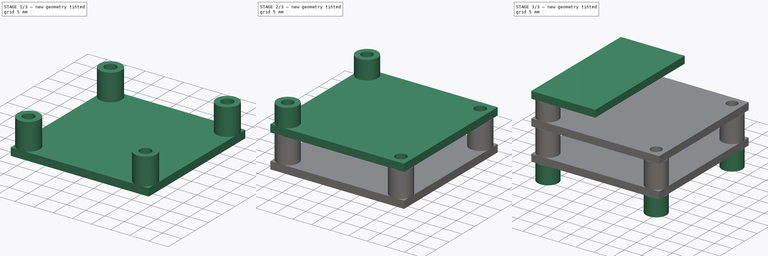
[diagram: build sequence overview — one tinted view per stage of 3, left to right]
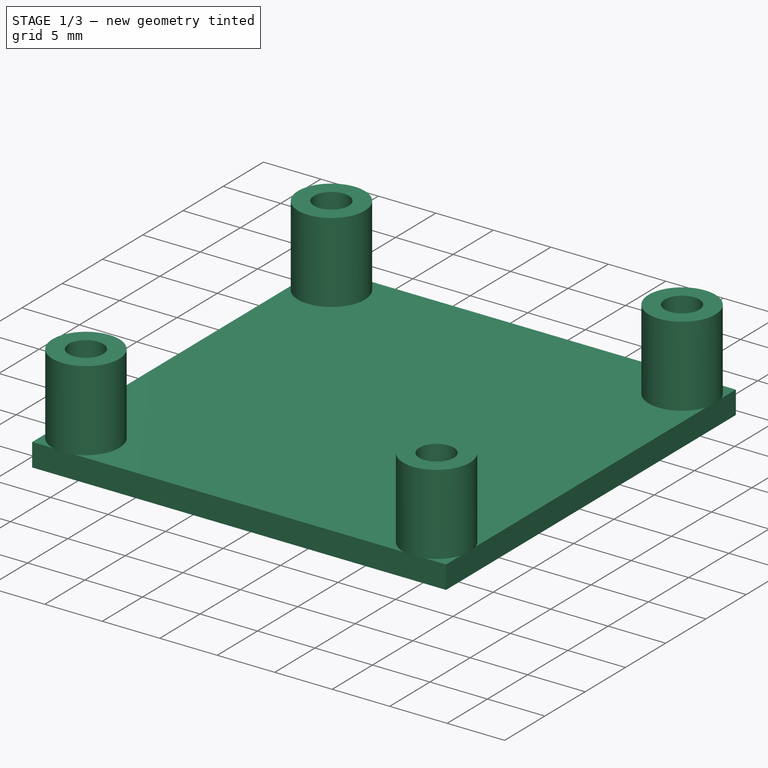
[diagram: stage 1 of 3 — iso view after this stage's code; geometry added in this stage tinted green]
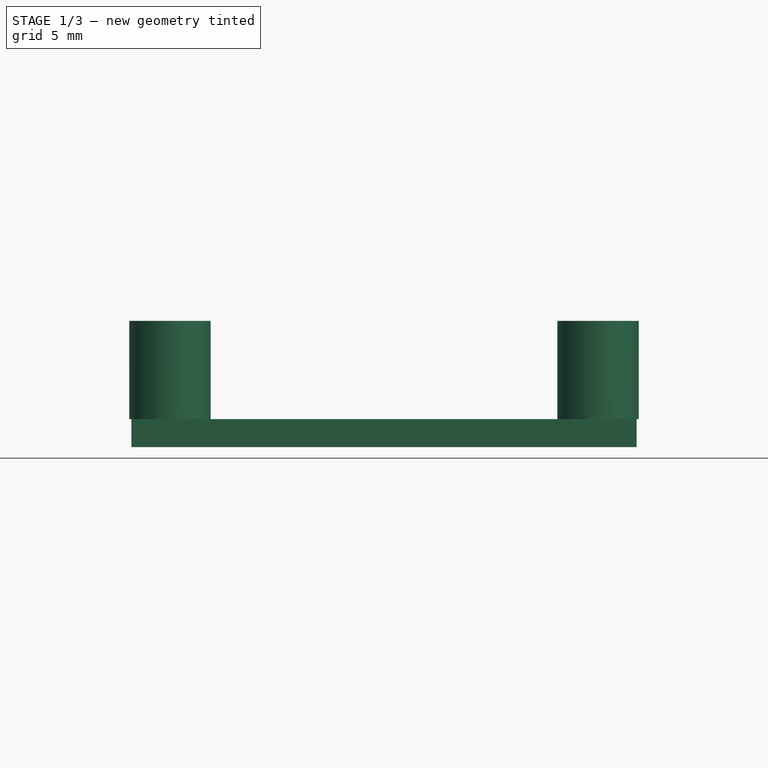
[diagram: stage 1 of 3 — front view after this stage's code; geometry added in this stage tinted green]
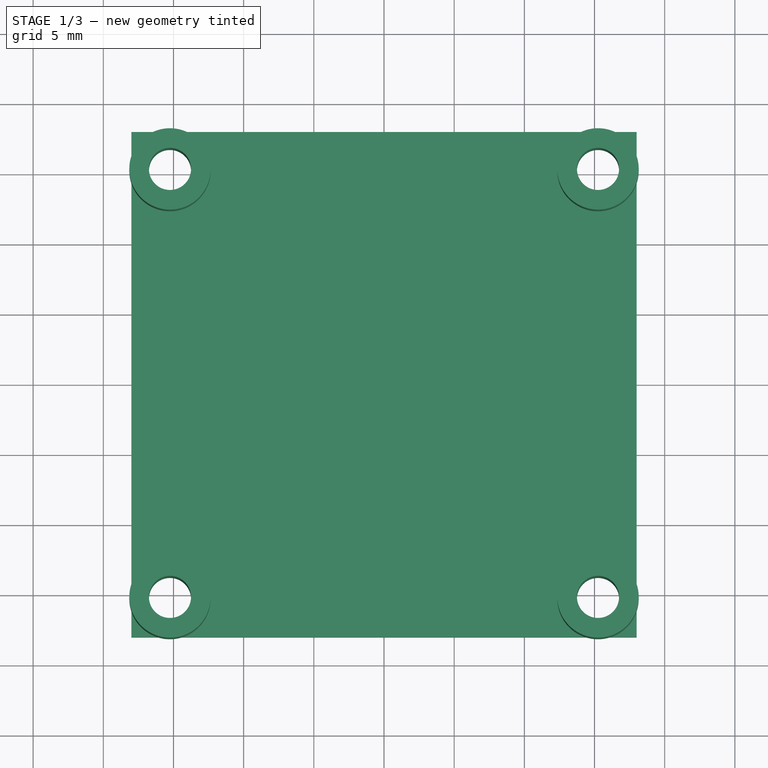
[diagram: stage 1 of 3 — top view after this stage's code; geometry added in this stage tinted green]
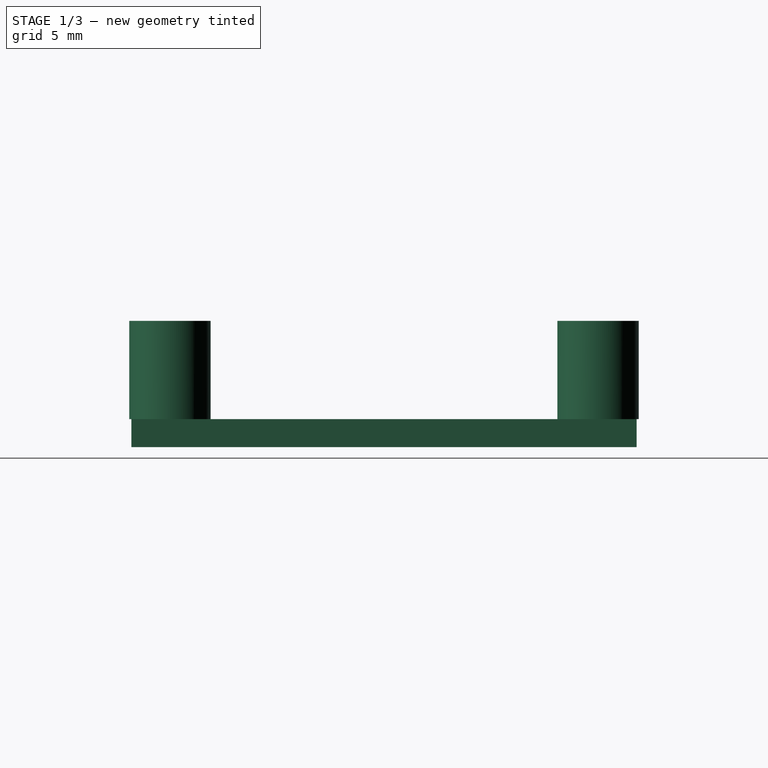
[diagram: stage 1 of 3 — right view after this stage's code; geometry added in this stage tinted green]
FCSTD DOCUMENT  (FreeCAD 0.18R15711 (Git))
Label: fc_stack
License: All rights reserved
LicenseURL: http://en.wikipedia.org/wiki/All_rights_reserved
objects: Sketcher::SketchObject×6, PartDesign::Pad×6, Spreadsheet::Sheet×1, PartDesign::Body×1
note: 19 computed .brp shape members not serialized (recipe doc carries the construction recipe); baked Part::Feature solids carry a one-line shape summary decoded from their .brp

FEATURE [Sketcher::SketchObject] Sketch
  MapMode = 5
  Support = -> [XY_Plane]
  expr: Constraints[27] = Spreadsheet.hole_pattern_h
  expr: Constraints[26] = Spreadsheet.hole_pattern_w
  expr: Constraints[25] = Spreadsheet.esc_h
  expr: Constraints[24] = Spreadsheet.esc_w
  expr: Constraints[23] = Spreadsheet.hole_dia
  sketch-geometry (12):
    g0: LineSegment StartX=-18 StartY=18 StartZ=0 EndX=18 EndY=18 EndZ=0
    g1: LineSegment StartX=18 StartY=18 StartZ=0 EndX=18 EndY=-18 EndZ=0
    g2: LineSegment StartX=18 StartY=-18 StartZ=0 EndX=-18 EndY=-18 EndZ=0
    g3: LineSegment StartX=-18 StartY=-18 StartZ=0 EndX=-18 EndY=18 EndZ=0
    g4: LineSegment [constr] StartX=15.25 StartY=15.25 StartZ=0 EndX=-15.25 EndY=15.25 EndZ=0
    g5: LineSegment [constr] StartX=-15.25 StartY=15.25 StartZ=0 EndX=-15.25 EndY=-15.25 EndZ=0
    g6: LineSegment [constr] StartX=-15.25 StartY=-15.25 StartZ=0 EndX=15.25 EndY=-15.25 EndZ=0
    g7: LineSegment [constr] StartX=15.25 StartY=-15.25 StartZ=0 EndX=15.25 EndY=15.25 EndZ=0
    g8: Circle CenterX=-15.25 CenterY=-15.25 CenterZ=0 NormalX=0 NormalY=0 NormalZ=1 AngleXU=0 Radius=1.5
    g9: Circle CenterX=15.25 CenterY=-15.25 CenterZ=0 NormalX=0 NormalY=0 NormalZ=1 AngleXU=0 Radius=1.5
    g10: Circle CenterX=-15.25 CenterY=15.25 CenterZ=0 NormalX=0 NormalY=0 NormalZ=1 AngleXU=0 Radius=1.5
    g11: Circle CenterX=15.25 CenterY=15.25 CenterZ=0 NormalX=0 NormalY=0 NormalZ=1 AngleXU=0 Radius=1.5
  constraints (28):
    c: Coincident(g0,g1)
    c: Coincident(g1,g2)
    c: Coincident(g2,g3)
    c: Coincident(g3,g0)
    c: Horizontal(g2)
    c: Vertical(g1)
    c: Coincident(g4,g5)
    c: Coincident(g5,g6)
    c: Coincident(g6,g7)
    c: Coincident(g7,g4)
    c: Horizontal(g6)
    c: Vertical(g7)
    c: Equal(g11,g10)
    c: Equal(g10,g9)
    c: Equal(g9,g8)
    c: Coincident(g11,g4)
    c: Coincident(g10,g4)
    c: Symmetric(g10,g11,g-2)
    c: Symmetric(g10,g5,g-1)
    c: Coincident(g8,g5)
    c: Coincident(g9,g6)
    c: Symmetric(g0,g2,g-1)
    c: Symmetric(g0,g0,g-2)
    c: Radius(g10) = 1.5
    c: DistanceX(g0,g0) = 36
    c: DistanceY(g3,g3) = 36
    c: DistanceX(g4,g4) = 30.5
    c: DistanceY(g5,g5) = 30.5
FEATURE [Spreadsheet::Sheet] Spreadsheet
  cells = A1=hole_dia; B1(hole_dia)=1.5; A2=esc_w; B2(esc_w)=36; A3=esc_h; B3(esc_h)=36; A4=esc_thickness; B4(esc_thickness)=2; A5=esc_spacer_height; B5(esc_spacer_height)=5; A6=fc_spacer_height; B6(fc_spacer_height)=7; A7=fc_w; B7(fc_w)=36; A8=fc_h; B8(fc_h)=36; A9=fc_thickness; B9(fc_thickness)=2; A10=hole_pattern_w; B10(hole_pattern_w)=30.5; A11=hole_pattern_h; B11(hole_pattern_h)=30.5; A12=spacer_or; B12(spacer_or)==5.7999999999999998 / 2; A13=vtx_spacer_height; B13(vtx_spacer_height)=5; A14=vtx_h; B14(vtx_h)=2
FEATURE [PartDesign::Pad] Pad
  Length = 2
  Length2 = 100
  Profile = -> Sketch
  Type = 0
  expr: Length = Spreadsheet.esc_thickness
FEATURE [Sketcher::SketchObject] Sketch001
  MapMode = 5
  Placement = pos=(0,0,2) rot=(0,0,1;0rad)
  Support = -> [Pad]
  expr: Constraints[18] = Spreadsheet.spacer_or
  expr: Constraints[17] = Spreadsheet.hole_pattern_h
  expr: Constraints[16] = Spreadsheet.hole_pattern_w
  expr: Constraints[15] = Spreadsheet.hole_dia
  sketch-geometry (12):
    g0: LineSegment [constr] StartX=15.25 StartY=15.25 StartZ=0 EndX=-15.25 EndY=15.25 EndZ=0
    g1: LineSegment [constr] StartX=-15.25 StartY=15.25 StartZ=0 EndX=-15.25 EndY=-15.25 EndZ=0
    g2: LineSegment [constr] StartX=-15.25 StartY=-15.25 StartZ=0 EndX=15.25 EndY=-15.25 EndZ=0
    g3: LineSegment [constr] StartX=15.25 StartY=-15.25 StartZ=0 EndX=15.25 EndY=15.25 EndZ=0
    g4: Circle CenterX=15.25 CenterY=-15.25 CenterZ=0 NormalX=0 NormalY=0 NormalZ=1 AngleXU=0 Radius=1.5
    g5: Circle CenterX=15.25 CenterY=15.25 CenterZ=0 NormalX=0 NormalY=0 NormalZ=1 AngleXU=0 Radius=1.5
    g6: Circle CenterX=-15.25 CenterY=15.25 CenterZ=0 NormalX=0 NormalY=0 NormalZ=1 AngleXU=0 Radius=1.5
    g7: Circle CenterX=-15.25 CenterY=-15.25 CenterZ=0 NormalX=0 NormalY=0 NormalZ=1 AngleXU=0 Radius=1.5
    g8: Circle CenterX=-15.25 CenterY=15.25 CenterZ=0 NormalX=0 NormalY=0 NormalZ=1 AngleXU=0 Radius=2.9
    g9: Circle CenterX=-15.25 CenterY=-15.25 CenterZ=0 NormalX=0 NormalY=0 NormalZ=1 AngleXU=0 Radius=2.9
    g10: Circle CenterX=15.25 CenterY=-15.25 CenterZ=0 NormalX=0 NormalY=0 NormalZ=1 AngleXU=0 Radius=2.9
    g11: Circle CenterX=15.25 CenterY=15.25 CenterZ=0 NormalX=0 NormalY=0 NormalZ=1 AngleXU=0 Radius=2.9
  constraints (26):
    c: Coincident(g0,g1)
    c: Coincident(g1,g2)
    c: Coincident(g2,g3)
    c: Coincident(g3,g0)
    c: Horizontal(g2)
    c: Vertical(g1)
    c: Symmetric(g0,g0,g-2)
    c: Symmetric(g0,g2,g-1)
    c: Coincident(g5,g0)
    c: Coincident(g4,g2)
    c: Coincident(g7,g1)
    c: Coincident(g6,g0)
    c: Equal(g6,g7)
    c: Equal(g7,g5)
    c: Equal(g5,g4)
    c: Radius(g6) = 1.5
    c: DistanceX(g0,g0) = 30.5
    c: DistanceY(g1,g1) = 30.5
    c: Radius(g11) = 2.9
    c: Equal(g11,g10)
    c: Equal(g10,g8)
    c: Equal(g8,g9)
    c: Coincident(g8,g6)
    c: Coincident(g9,g7)
    c: Coincident(g10,g4)
    c: Coincident(g11,g5)
FEATURE [PartDesign::Pad] Pad001
  BaseFeature = -> Pad
  Length = 7
  Length2 = 100
  Profile = -> Sketch001
  Type = 0
  expr: Length = Spreadsheet.fc_spacer_height
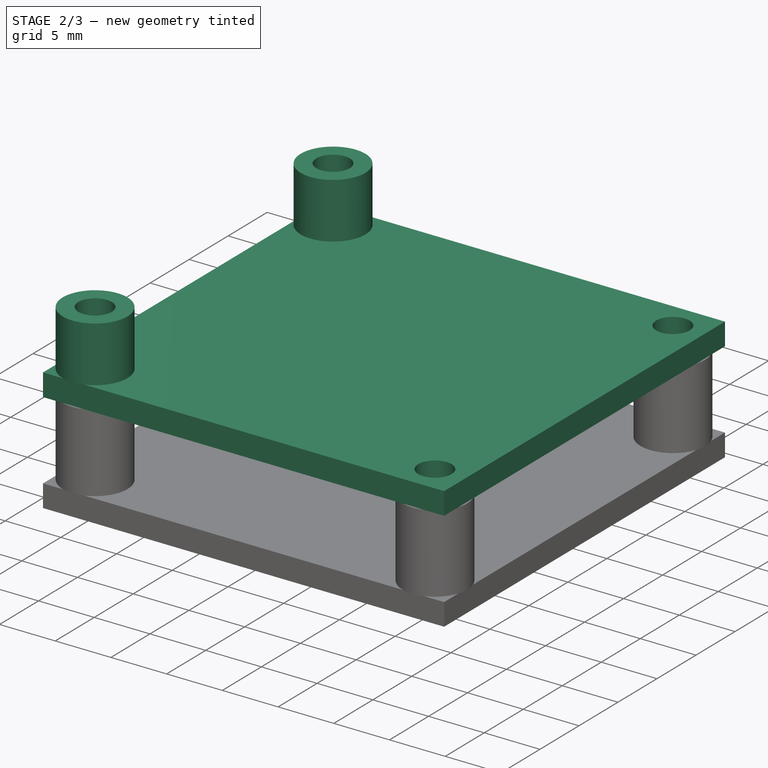
[diagram: stage 2 of 3 — iso view after this stage's code; geometry added in this stage tinted green]
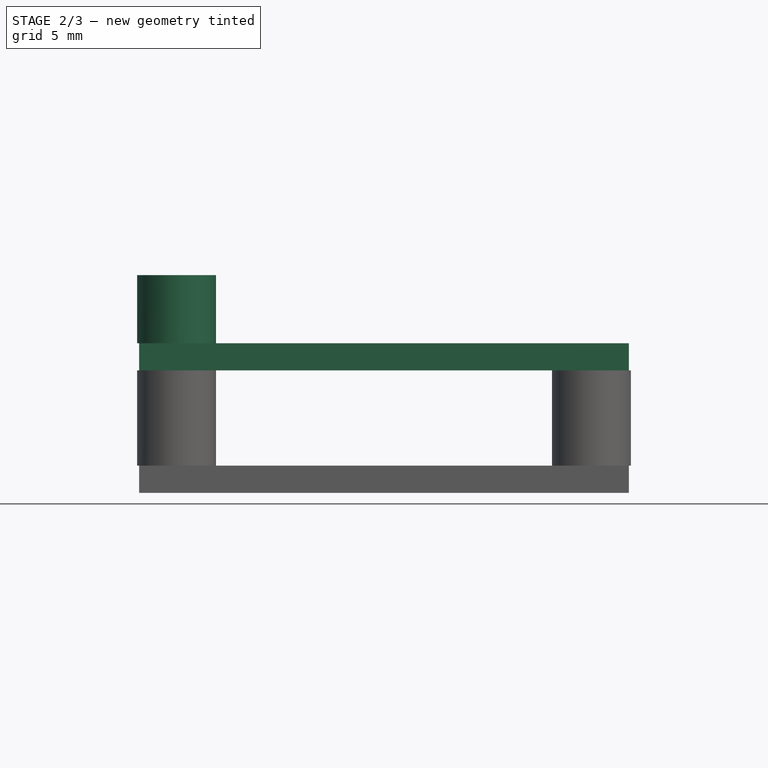
[diagram: stage 2 of 3 — front view after this stage's code; geometry added in this stage tinted green]
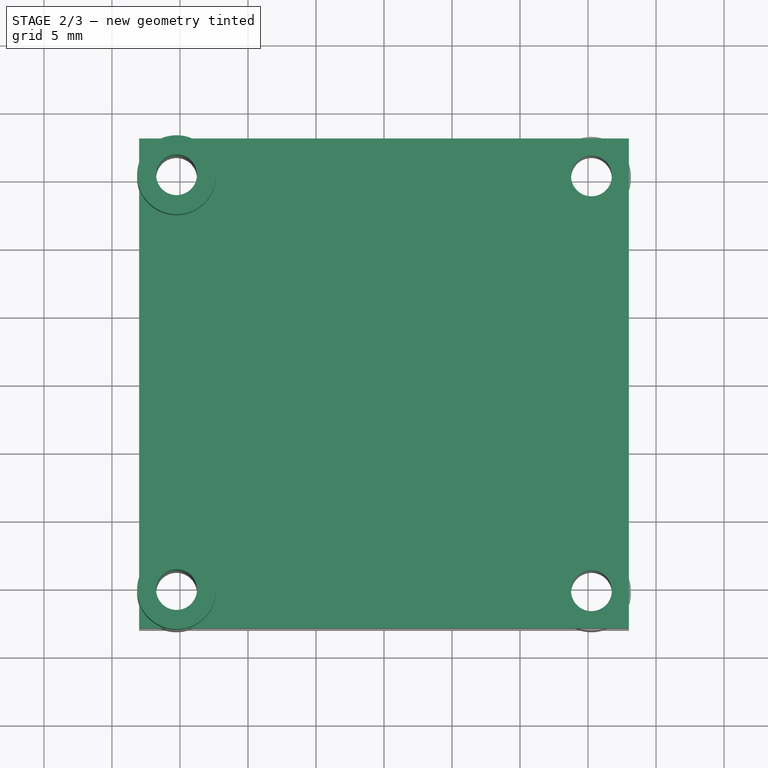
[diagram: stage 2 of 3 — top view after this stage's code; geometry added in this stage tinted green]
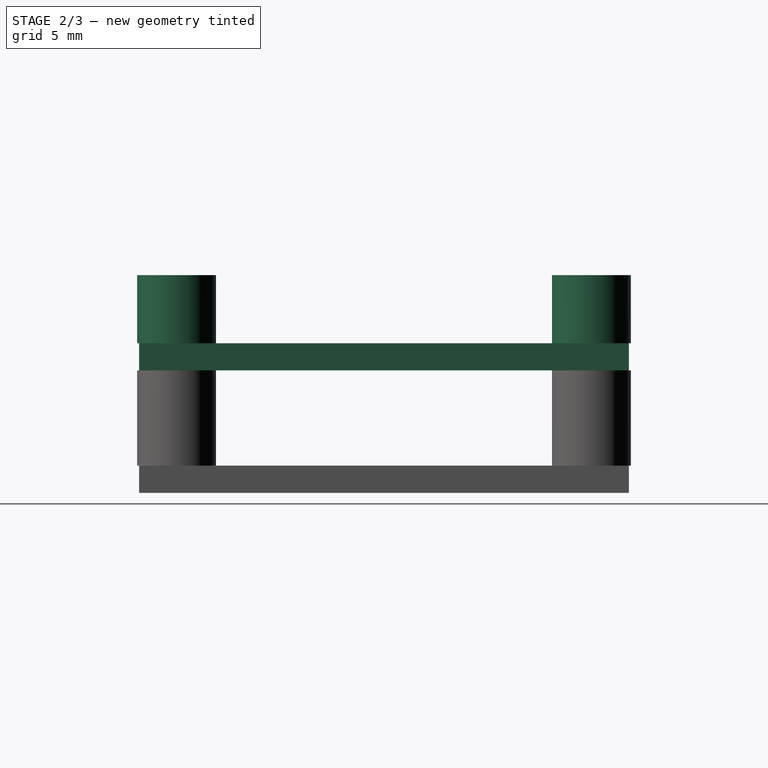
[diagram: stage 2 of 3 — right view after this stage's code; geometry added in this stage tinted green]
FEATURE [Sketcher::SketchObject] Sketch002
  MapMode = 5
  Placement = pos=(0,0,9) rot=(0,0,1;0rad)
  Support = -> [Pad001]
  expr: Constraints[26] = Spreadsheet.hole_pattern_w
  expr: Constraints[25] = Spreadsheet.hole_dia
  expr: Constraints[27] = Spreadsheet.hole_pattern_h
  expr: Constraints[9] = Spreadsheet.fc_h
  expr: Constraints[8] = Spreadsheet.fc_w
  sketch-geometry (12):
    g0: LineSegment StartX=-18 StartY=18 StartZ=0 EndX=18 EndY=18 EndZ=0
    g1: LineSegment StartX=18 StartY=18 StartZ=0 EndX=18 EndY=-18 EndZ=0
    g2: LineSegment StartX=18 StartY=-18 StartZ=0 EndX=-18 EndY=-18 EndZ=0
    g3: LineSegment StartX=-18 StartY=-18 StartZ=0 EndX=-18 EndY=18 EndZ=0
    g4: LineSegment [constr] StartX=-15.25 StartY=15.25 StartZ=0 EndX=15.25 EndY=15.25 EndZ=0
    g5: LineSegment [constr] StartX=15.25 StartY=15.25 StartZ=0 EndX=15.25 EndY=-15.25 EndZ=0
    g6: LineSegment [constr] StartX=15.25 StartY=-15.25 StartZ=0 EndX=-15.25 EndY=-15.25 EndZ=0
    g7: LineSegment [constr] StartX=-15.25 StartY=-15.25 StartZ=0 EndX=-15.25 EndY=15.25 EndZ=0
    g8: Circle CenterX=-15.25 CenterY=15.25 CenterZ=0 NormalX=0 NormalY=0 NormalZ=1 AngleXU=0 Radius=1.5
    g9: Circle CenterX=15.25 CenterY=15.25 CenterZ=0 NormalX=0 NormalY=0 NormalZ=1 AngleXU=0 Radius=1.5
    g10: Circle CenterX=15.25 CenterY=-15.25 CenterZ=0 NormalX=0 NormalY=0 NormalZ=1 AngleXU=0 Radius=1.5
    g11: Circle CenterX=-15.25 CenterY=-15.25 CenterZ=0 NormalX=0 NormalY=0 NormalZ=1 AngleXU=0 Radius=1.5
  constraints (28):
    c: Coincident(g0,g1)
    c: Coincident(g1,g2)
    c: Coincident(g2,g3)
    c: Coincident(g3,g0)
    c: Horizontal(g2)
    c: Vertical(g1)
    c: Symmetric(g0,g0,g-2)
    c: Symmetric(g0,g2,g-1)
    c: DistanceX(g0,g0) = 36
    c: DistanceY(g3,g3) = 36
    c: Coincident(g4,g5)
    c: Coincident(g5,g6)
    c: Coincident(g6,g7)
    c: Coincident(g7,g4)
    c: Horizontal(g6)
    c: Vertical(g5)
    c: Symmetric(g4,g4,g-2)
    c: Symmetric(g4,g6,g-1)
    c: Equal(g9,g8)
    c: Equal(g8,g10)
    c: Equal(g10,g11)
    c: Coincident(g8,g4)
    c: Coincident(g9,g4)
    c: Coincident(g10,g5)
    c: Coincident(g11,g6)
    c: Radius(g9) = 1.5
    c: DistanceX(g4,g4) = 30.5
    c: DistanceY(g5,g5) = 30.5
FEATURE [PartDesign::Pad] Pad002
  BaseFeature = -> Pad001
  Length = 2
  Length2 = 100
  Profile = -> Sketch002
  Type = 0
  expr: Length = Spreadsheet.fc_thickness
FEATURE [Sketcher::SketchObject] Sketch003
  MapMode = 5
  Placement = pos=(0,0,11) rot=(0,0,1;0rad)
  Support = -> [Pad002]
  expr: Constraints[18] = Spreadsheet.hole_pattern_w / 2
  expr: Constraints[17] = Spreadsheet.hole_pattern_h
  expr: Constraints[12] = Spreadsheet.spacer_or
  expr: Constraints[8] = Spreadsheet.hole_dia
  sketch-geometry (8):
    g0: LineSegment [constr] StartX=-15.25 StartY=15.25 StartZ=0 EndX=0 EndY=15.25 EndZ=0
    g1: LineSegment [constr] StartX=0 StartY=15.25 StartZ=0 EndX=0 EndY=-15.25 EndZ=0
    g2: LineSegment [constr] StartX=0 StartY=-15.25 StartZ=0 EndX=-15.25 EndY=-15.25 EndZ=0
    g3: LineSegment [constr] StartX=-15.25 StartY=-15.25 StartZ=0 EndX=-15.25 EndY=15.25 EndZ=0
    g4: Circle CenterX=-15.25 CenterY=15.25 CenterZ=0 NormalX=0 NormalY=0 NormalZ=1 AngleXU=0 Radius=1.5
    g5: Circle CenterX=-15.25 CenterY=-15.25 CenterZ=0 NormalX=0 NormalY=0 NormalZ=1 AngleXU=0 Radius=1.5
    g6: Circle CenterX=-15.25 CenterY=15.25 CenterZ=0 NormalX=0 NormalY=0 NormalZ=1 AngleXU=0 Radius=2.9
    g7: Circle CenterX=-15.25 CenterY=-15.25 CenterZ=0 NormalX=0 NormalY=0 NormalZ=1 AngleXU=0 Radius=2.9
  constraints (19):
    c: Coincident(g0,g1)
    c: Coincident(g1,g2)
    c: Coincident(g2,g3)
    c: Coincident(g3,g0)
    c: Horizontal(g0)
    c: Horizontal(g2)
    c: Vertical(g3)
    c: Equal(g5,g4)
    c: Radius(g4) = 1.5
    c: Coincident(g5,g2)
    c: Coincident(g4,g0)
    c: Equal(g6,g7)
    c: Radius(g6) = 2.9
    c: Coincident(g6,g4)
    c: Coincident(g7,g5)
    c: Symmetric(g0,g1,g-1)
    c: PointOnObject(g0,g-2)
    c: DistanceY(g1,g1) = 30.5
    c: DistanceX(g2,g2) = 15.25
FEATURE [PartDesign::Pad] Pad003
  BaseFeature = -> Pad002
  Length = 5
  Length2 = 100
  Profile = -> Sketch003
  Type = 0
  expr: Length = Spreadsheet.vtx_spacer_height
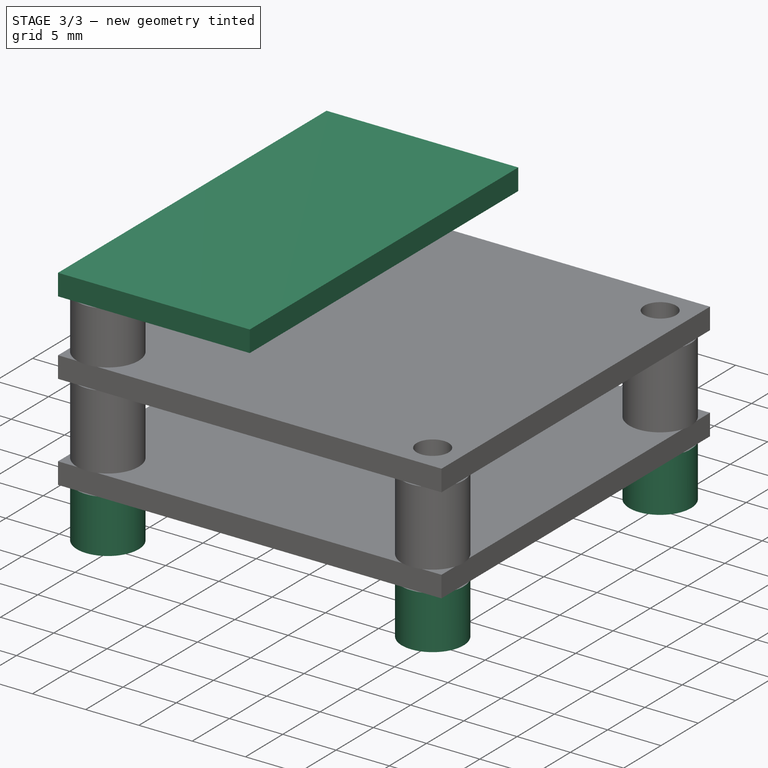
[diagram: stage 3 of 3 — iso view after this stage's code; geometry added in this stage tinted green]
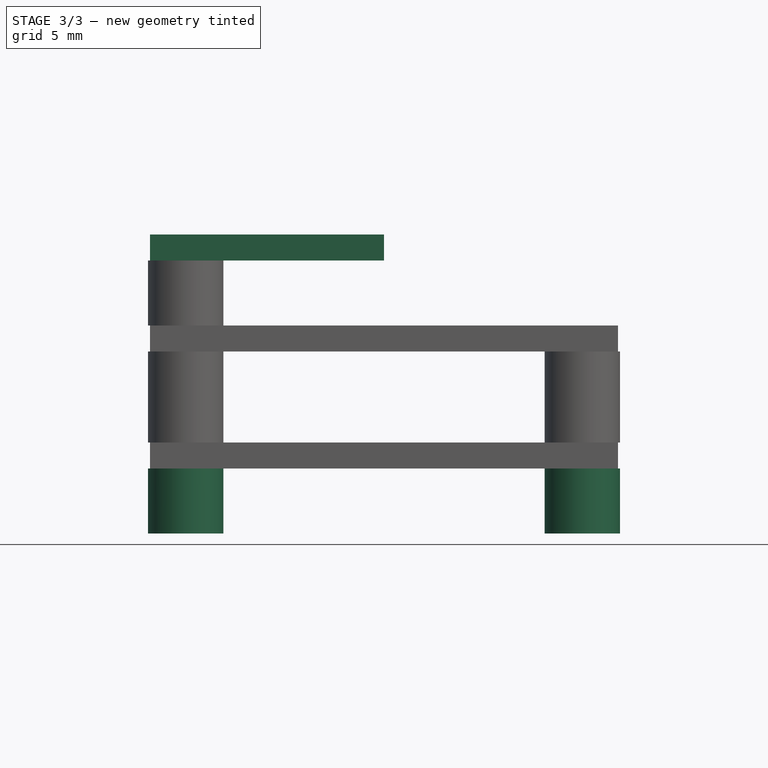
[diagram: stage 3 of 3 — front view after this stage's code; geometry added in this stage tinted green]
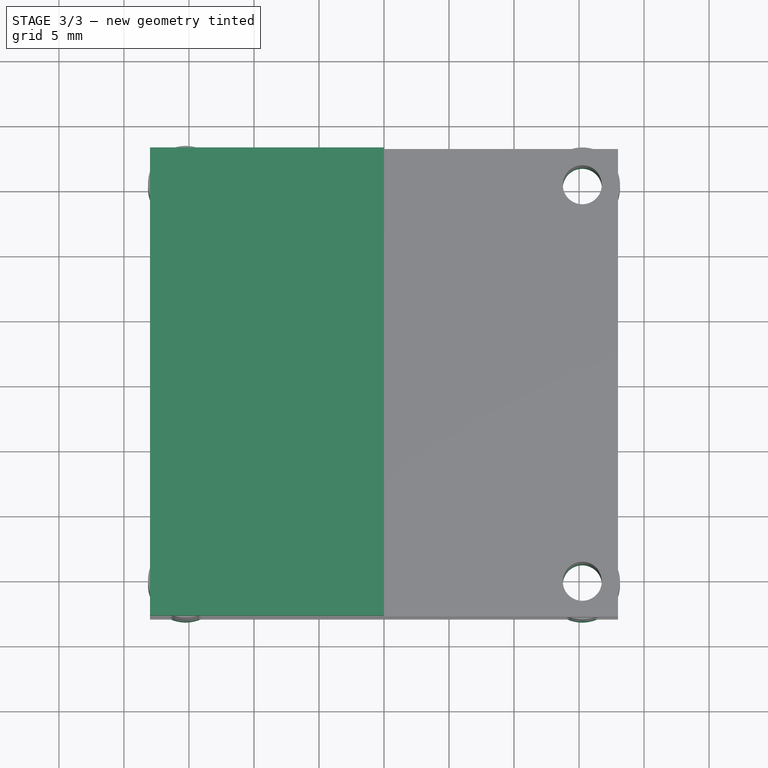
[diagram: stage 3 of 3 — top view after this stage's code; geometry added in this stage tinted green]
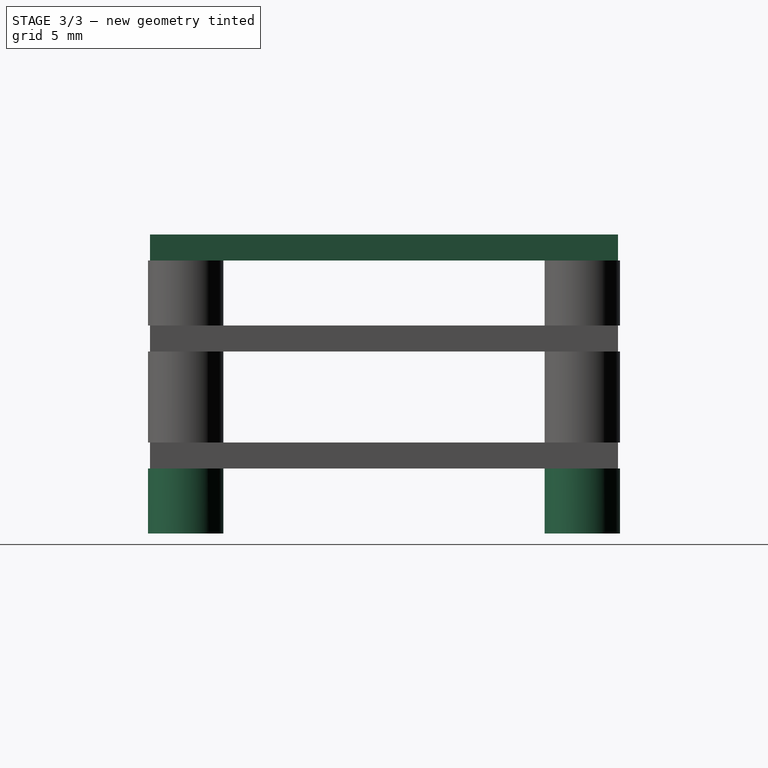
[diagram: stage 3 of 3 — right view after this stage's code; geometry added in this stage tinted green]
FEATURE [Sketcher::SketchObject] Sketch004
  MapMode = 5
  Placement = pos=(0,0,16) rot=(0,0,1;0rad)
  Support = -> [Pad003]
  expr: Constraints[10] = Spreadsheet.fc_h
  expr: Constraints[9] = Spreadsheet.fc_w / 2
  sketch-geometry (4):
    g0: LineSegment StartX=-18 StartY=18 StartZ=0 EndX=0 EndY=18 EndZ=0
    g1: LineSegment StartX=0 StartY=18 StartZ=0 EndX=0 EndY=-18 EndZ=0
    g2: LineSegment StartX=0 StartY=-18 StartZ=0 EndX=-18 EndY=-18 EndZ=0
    g3: LineSegment StartX=-18 StartY=-18 StartZ=0 EndX=-18 EndY=18 EndZ=0
  constraints (11):
    c: Coincident(g0,g1)
    c: Coincident(g1,g2)
    c: Coincident(g2,g3)
    c: Coincident(g3,g0)
    c: Horizontal(g0)
    c: Horizontal(g2)
    c: Vertical(g1)
    c: PointOnObject(g0,g-2)
    c: Symmetric(g0,g2,g-1)
    c: DistanceX(g0,g0) = 18
    c: DistanceY(g3,g3) = 36
FEATURE [PartDesign::Pad] Pad004
  BaseFeature = -> Pad003
  Length = 2
  Length2 = 100
  Profile = -> Sketch004
  Type = 0
  expr: Length = Spreadsheet.vtx_h
FEATURE [Sketcher::SketchObject] Sketch005
  MapMode = 5
  Placement = pos=(0,0,0) rot=(1,0,0;3.14159rad)
  Support = -> [Pad004]
  expr: Constraints[21] = Spreadsheet.spacer_or
  expr: Constraints[17] = Spreadsheet.hole_dia
  expr: Constraints[6] = Spreadsheet.hole_pattern_w
  sketch-geometry (12):
    g0: LineSegment [constr] StartX=-15.25 StartY=15.25 StartZ=0 EndX=15.25 EndY=15.25 EndZ=0
    g1: LineSegment [constr] StartX=15.25 StartY=15.25 StartZ=0 EndX=15.25 EndY=-15.25 EndZ=0
    g2: LineSegment [constr] StartX=15.25 StartY=-15.25 StartZ=0 EndX=-15.25 EndY=-15.25 EndZ=0
    g3: LineSegment [constr] StartX=-15.25 StartY=-15.25 StartZ=0 EndX=-15.25 EndY=15.25 EndZ=0
    g4: Circle CenterX=-15.25 CenterY=15.25 CenterZ=0 NormalX=0 NormalY=0 NormalZ=1 AngleXU=0 Radius=1.5
    g5: Circle CenterX=-15.25 CenterY=15.25 CenterZ=0 NormalX=0 NormalY=0 NormalZ=1 AngleXU=0 Radius=2.9
    g6: Circle CenterX=-15.25 CenterY=-15.25 CenterZ=0 NormalX=0 NormalY=0 NormalZ=1 AngleXU=0 Radius=1.5
    g7: Circle CenterX=-15.25 CenterY=-15.25 CenterZ=0 NormalX=0 NormalY=0 NormalZ=1 AngleXU=0 Radius=2.9
    g8: Circle CenterX=15.25 CenterY=-15.25 CenterZ=0 NormalX=0 NormalY=0 NormalZ=1 AngleXU=0 Radius=1.5
    g9: Circle CenterX=15.25 CenterY=-15.25 CenterZ=0 NormalX=0 NormalY=0 NormalZ=1 AngleXU=0 Radius=2.9
    g10: Circle CenterX=15.25 CenterY=15.25 CenterZ=0 NormalX=0 NormalY=0 NormalZ=1 AngleXU=0 Radius=1.5
    g11: Circle CenterX=15.25 CenterY=15.25 CenterZ=0 NormalX=0 NormalY=0 NormalZ=1 AngleXU=0 Radius=2.9
  constraints (26):
    c: Coincident(g0,g1)
    c: Coincident(g1,g2)
    c: Coincident(g2,g3)
    c: Coincident(g3,g0)
    c: Horizontal(g2)
    c: Vertical(g1)
    c: DistanceX(g0,g0) = 30.5
    c: Equal(g1,g0)
    c: Symmetric(g0,g0,g-2)
    c: Symmetric(g0,g2,g-1)
    c: Coincident(g5,g4)
    c: Coincident(g7,g6)
    c: Coincident(g9,g8)
    c: Coincident(g11,g10)
    c: Equal(g10,g4)
    c: Equal(g4,g6)
    c: Equal(g6,g8)
    c: Radius(g10) = 1.5
    c: Equal(g11,g9)
    c: Equal(g9,g7)
    c: Equal(g7,g5)
    c: Radius(g5) = 2.9
    c: Coincident(g4,g0)
    c: Coincident(g6,g2)
    c: Coincident(g8,g1)
    c: Coincident(g10,g0)
FEATURE [PartDesign::Pad] Pad005
  BaseFeature = -> Pad004
  Length = 5
  Length2 = 100
  Profile = -> Sketch005
  Type = 0
  expr: Length = Spreadsheet.esc_spacer_height
FEATURE [PartDesign::Body] Body
  Group = -> [Sketch,Pad,Sketch001,Pad001,Sketch002,Pad002,Sketch003,Pad003,Sketch004,Pad004,Sketch005,Pad005]
  Origin = -> Origin
  Tip = -> Pad005
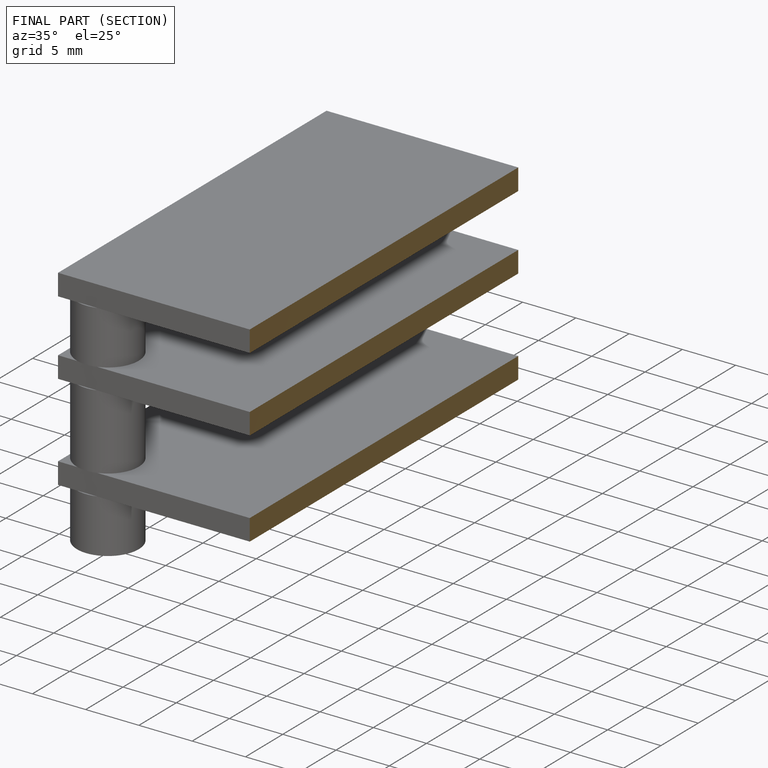
[diagram: finished part — half-section view (interior)]
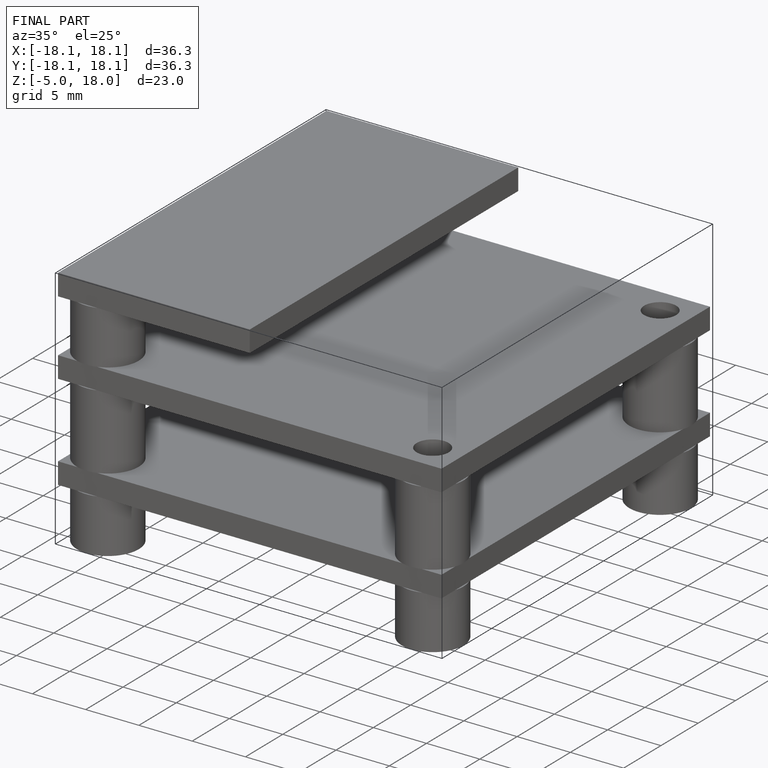
[diagram: finished part — iso view with bounding-box wireframe]
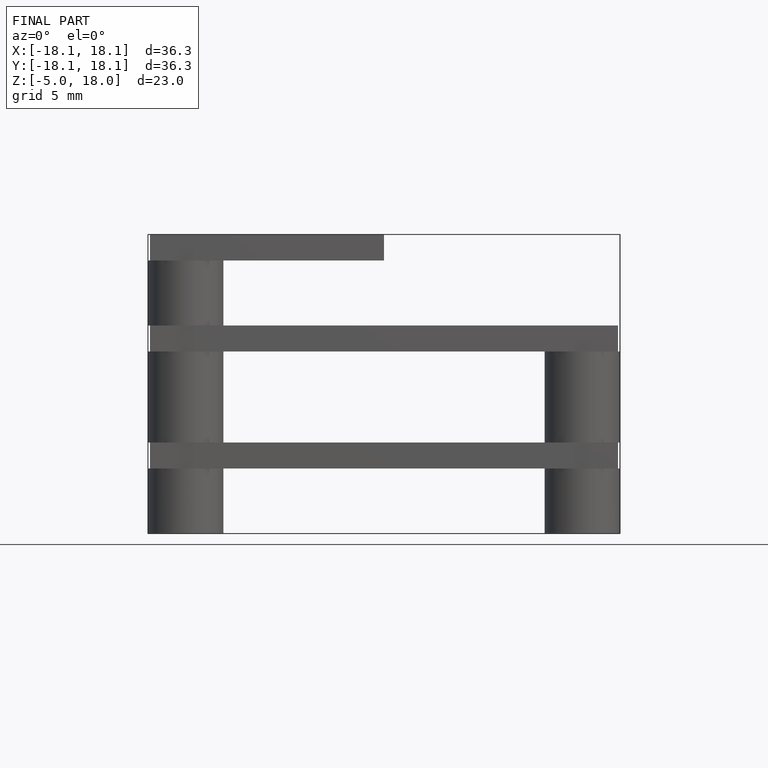
[diagram: finished part — front view with bounding-box wireframe]
